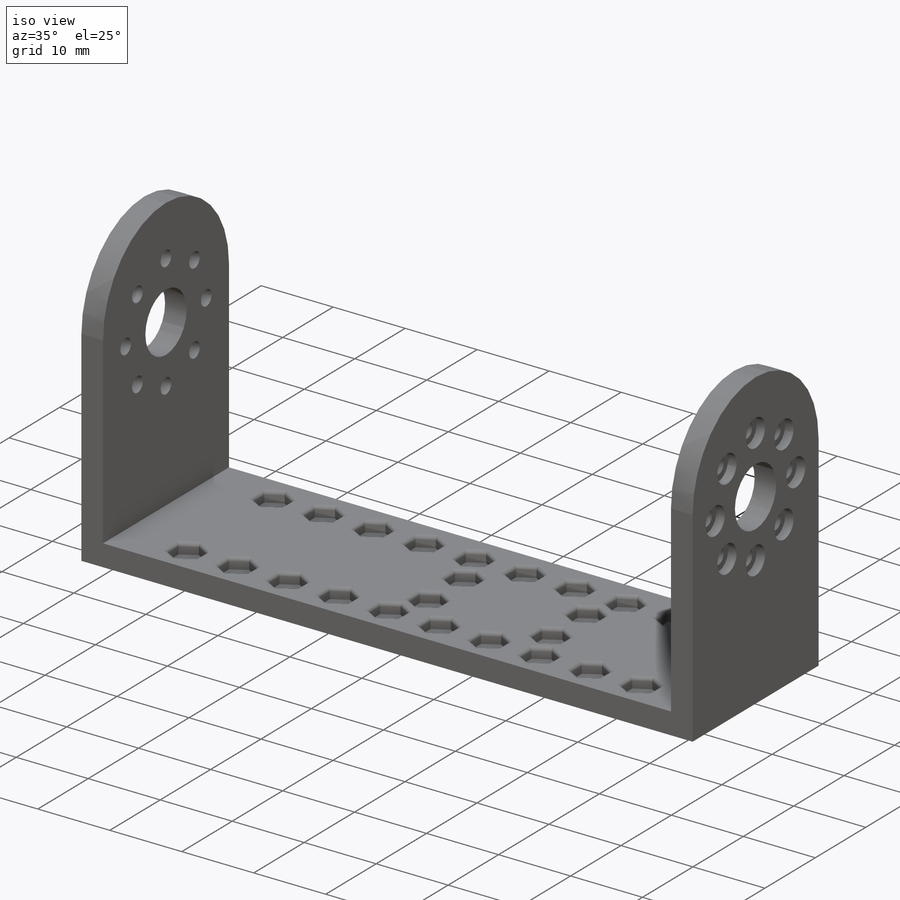
[diagram: iso view]
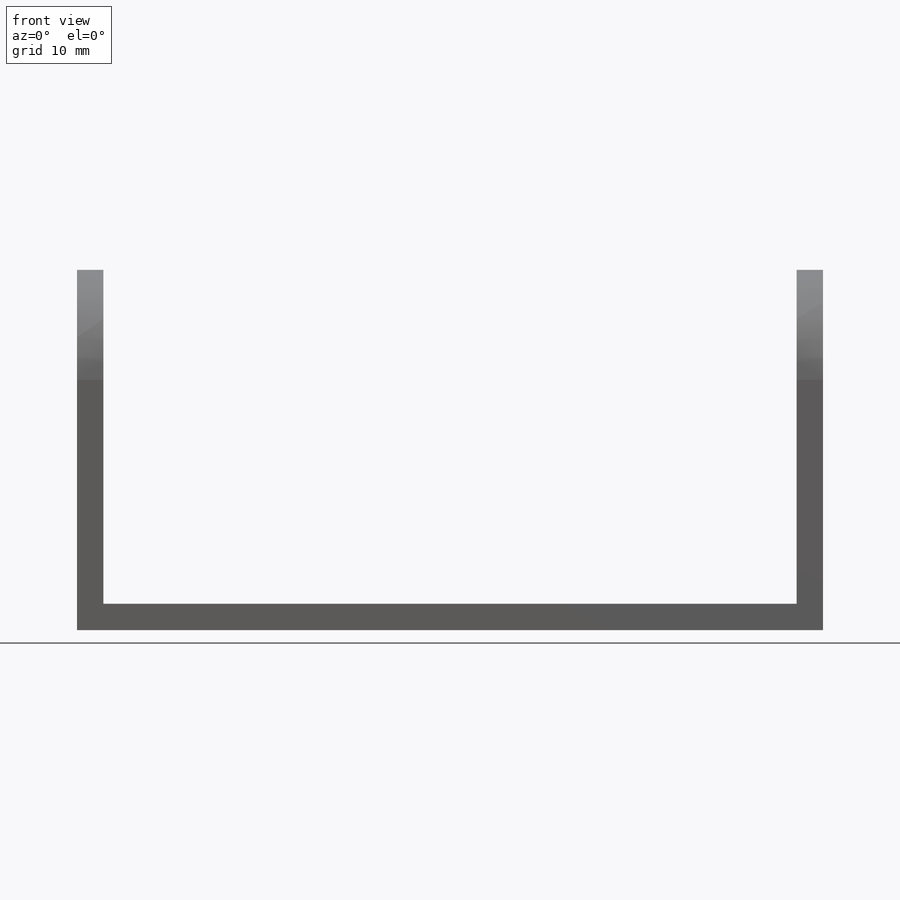
[diagram: front view]
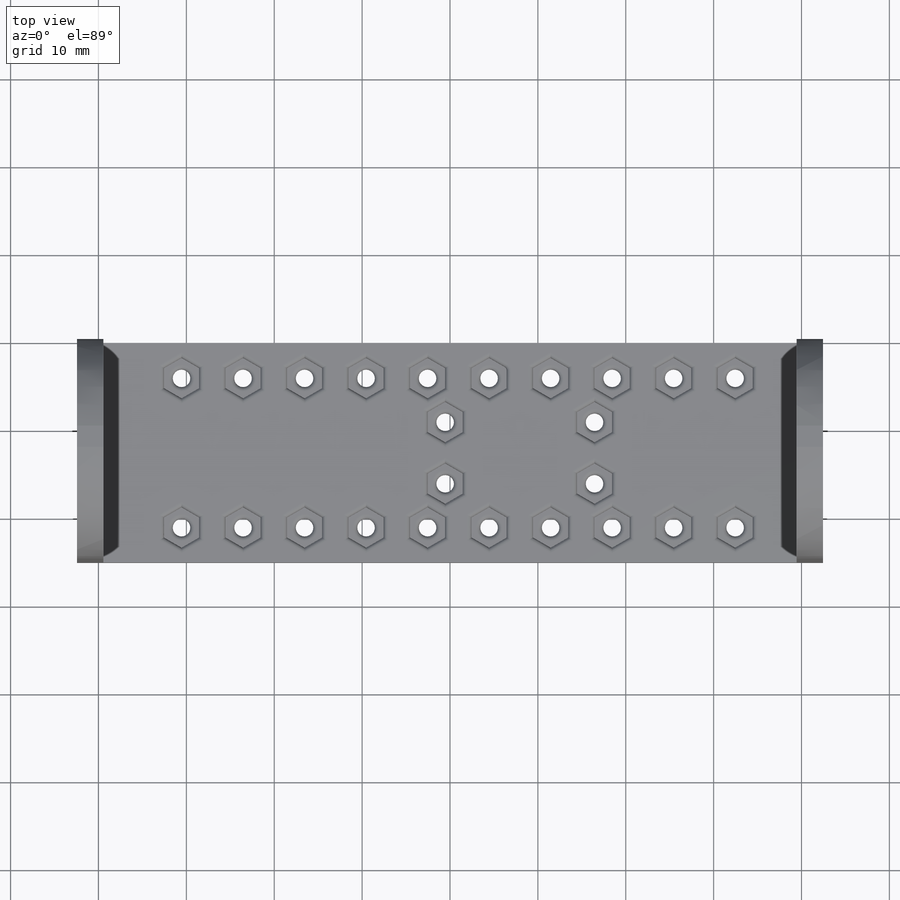
[diagram: top view]
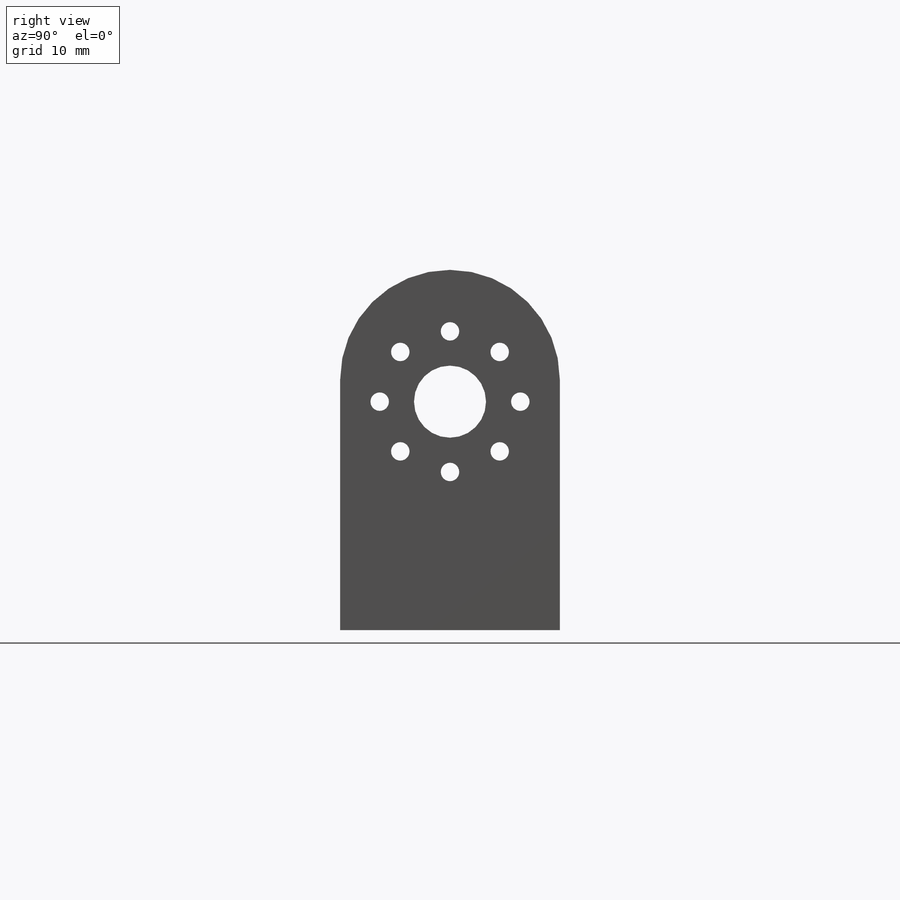
[diagram: right view]
SOLIDWORKS PART (.sldprt)
format: sldprt  version: not decoded by parser v0  size: 994,816 bytes
history: native  units: mm
features: sketch x6, cut_extrude x5, plane x3, fillet x2, material x1, extrude x1, pattern_circular x1, mirror x1 (+9 scaffold rows collapsed)
feature tree (29):
  scaffold x9  (default folders/planes/origin — collapsed)
  material  "Polyamide"
  plane  "Plan de face"
  plane  "Plan de dessus"
  plane  "Plan de droite"
  sketch  "Sketch1"  dims[D1=39.45mm D2=42.45mm D3=3.0mm D4=41.0mm]
  extrude  "Boss-Extrude1"  Depth=25mm
  sketch  "Sketch2"  dims[c1.D1=8.2mm c1.D3=8.2mm c1.D4=2.1mm c1.D6=2.1mm c1.D2=12.5mm c2.D3=15.0mm c2.D5=8.0mm c2.D6=8.0mm]
  cut_extrude  "Cut-Extrude1"  [1 undecoded]
  sketch  "Sketch3"  dims[c1.D1=2.1mm c1.D2=2.1mm c1.D3=2.1mm c2.D2=0.0mm c2.D3=8.0mm]
  cut_extrude  "Cut-Extrude2"  [1 undecoded]
  sketch  "Sketch4"  dims[D1=3.8mm]
  cut_extrude  "Cut-Extrude3"  Depth=1.2mm
  pattern_circular  "CirPattern1"  Count=8 Angle=45deg
  mirror  "Mirror2"
  fillet  "Congé1"  Radius=12.5mm
  sketch  "Esquisse1"  dims[c1.D1=2.0mm c1.D2=2.0mm c1.D3=2.0mm c1.D4=2.0mm c1.D5=2.0mm c1.D6=2.0mm c1.D7=2.0mm c1.D8=2.0mm c2.D1=23.0mm c2.D2=7.0mm c2.D3=5.0mm c2.D4=5.0mm c2.D5=7.0mm c2.D6=5.0mm c2.D7=4.0mm c2.D8=4.0mm c3.D8=6.0 c3.D9=4.0]
  cut_extrude  "Enlèv. mat.-Extru.1"  Depth=10mm
  sketch  "Sketch5"  dims[D1=4.0mm D2=4.0mm D3=4.0mm D4=4.0mm D5=4.0mm D6=4.0mm D7=4.0mm D8=4.0mm D9=4.0mm D10=4.0mm D11=4.0mm D12=4.0mm D13=4.0mm D14=4.0mm D15=4.0mm D16=4.0mm D17=4.0mm D18=4.0mm D19=4.0mm D20=4.0mm D21=4.0mm D22=4.0mm D23=4.0mm D24=4.0mm]
  cut_extrude  "Cut-Extrude4"  Depth=1.5mm
  fillet  "Fillet1"  Radius=0.5mm
decode coverage: 13 of 16 modeling features carry decoded parameters
note: 2 parameter values undecoded
note: suppression state not decoded; provenance and decode notes live in map.json
